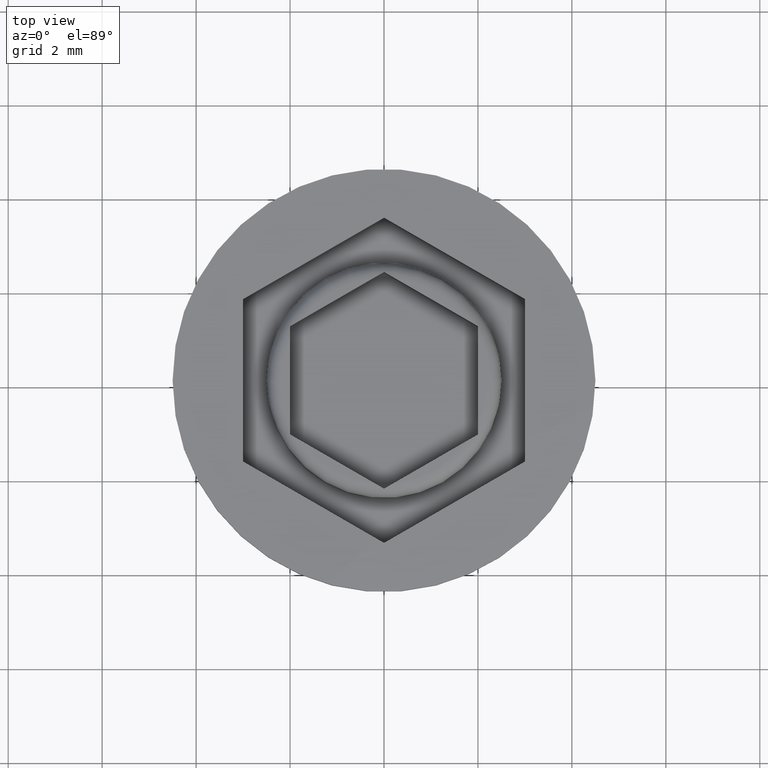
[diagram: clean part render]
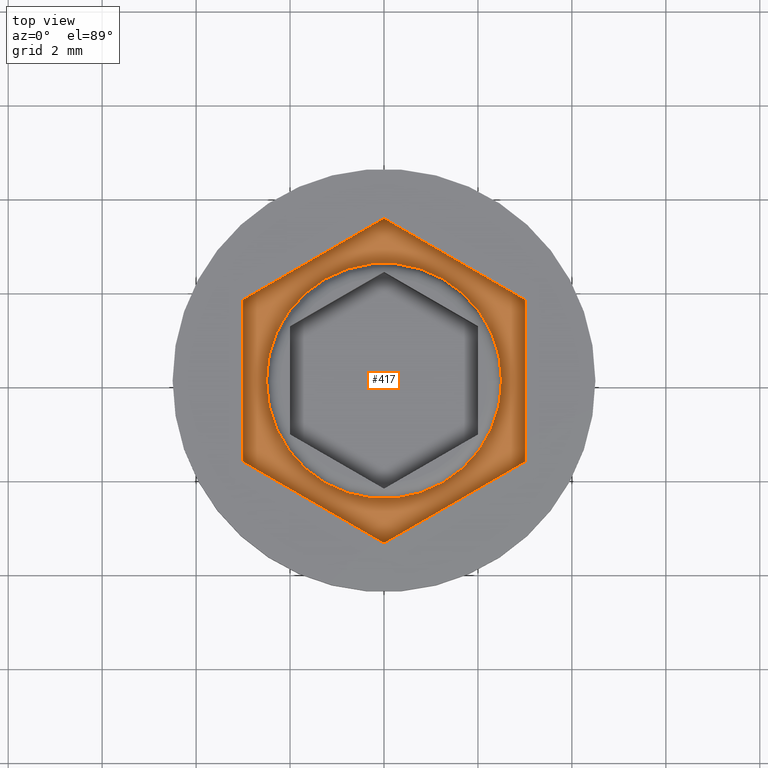
[diagram: same view with one face highlighted and labeled with its STEP entity id]
A machine part, top view. The second image highlights one B-rep face of the part: STEP entity #417.
In plain terms, the highlighted planar face has unit normal (0, 0, 1).
Its self-contained STEP definition (entity closure, byte-faithful):
#5 = VECTOR ( 'NONE', #1061, 1000.000000000000000 ) ;
#27 = LINE ( 'NONE', #807, #362 ) ;
#108 = DIRECTION ( 'NONE',  ( 0.000000000000000000, 0.000000000000000000, 1.000000000000000000 ) ) ;
#117 = VERTEX_POINT ( 'NONE', #242 ) ;
#149 = CARTESIAN_POINT ( 'NONE',  ( 3.000000000000000000, 1.732050807568877859, -1.000000000000000000 ) ) ;
#205 = ORIENTED_EDGE ( 'NONE', *, *, #1353, .T. ) ;
#242 = CARTESIAN_POINT ( 'NONE',  ( -2.500000000000000444, 0.000000000000000000, -1.000000000000000000 ) ) ;
#243 = CARTESIAN_POINT ( 'NONE',  ( 2.500000000000000444, 3.061616997868383634E-16, -1.000000000000000000 ) ) ;
#276 = CARTESIAN_POINT ( 'NONE',  ( -3.394223061414856671E-17, -3.464101615137754386, -1.000000000000000000 ) ) ;
#286 = AXIS2_PLACEMENT_3D ( 'NONE', #1520, #108, #1686 ) ;
#293 = CARTESIAN_POINT ( 'NONE',  ( 0.000000000000000000, 0.000000000000000000, -1.000000000000000000 ) ) ;
#361 = FACE_BOUND ( 'NONE', #1837, .T. ) ;
#362 = VECTOR ( 'NONE', #791, 1000.000000000000000 ) ;
#417 = ADVANCED_FACE ( 'NONE', ( #361, #1313 ), #852, .T. ) ;
#439 = VERTEX_POINT ( 'NONE', #1618 ) ;
#462 = AXIS2_PLACEMENT_3D ( 'NONE', #293, #464, #1089 ) ;
#464 = DIRECTION ( 'NONE',  ( 0.000000000000000000, 0.000000000000000000, 1.000000000000000000 ) ) ;
#519 = EDGE_CURVE ( 'NONE', #1950, #117, #1572, .T. ) ;
#537 = DIRECTION ( 'NONE',  ( 0.000000000000000000, 0.000000000000000000, 1.000000000000000000 ) ) ;
#561 = CARTESIAN_POINT ( 'NONE',  ( -3.000000000000000000, 1.732050807568876083, -1.000000000000000000 ) ) ;
#564 = ORIENTED_EDGE ( 'NONE', *, *, #1948, .T. ) ;
#589 = VECTOR ( 'NONE', #1505, 1000.000000000000114 ) ;
#634 = ORIENTED_EDGE ( 'NONE', *, *, #519, .F. ) ;
#702 = DIRECTION ( 'NONE',  ( 0.000000000000000000, -1.000000000000000000, 0.000000000000000000 ) ) ;
#756 = VECTOR ( 'NONE', #1703, 1000.000000000000000 ) ;
#760 = ORIENTED_EDGE ( 'NONE', *, *, #806, .T. ) ;
#791 = DIRECTION ( 'NONE',  ( 0.000000000000000000, 1.000000000000000000, 0.000000000000000000 ) ) ;
#801 = ORIENTED_EDGE ( 'NONE', *, *, #1637, .T. ) ;
#806 = EDGE_CURVE ( 'NONE', #899, #961, #1041, .T. ) ;
#807 = CARTESIAN_POINT ( 'NONE',  ( 3.000000000000000000, -1.732050807568876971, -1.000000000000000000 ) ) ;
#852 = PLANE ( 'NONE',  #1605 ) ;
#875 = EDGE_CURVE ( 'NONE', #439, #1585, #1517, .T. ) ;
#896 = DIRECTION ( 'NONE',  ( 0.8660254037844385966, 0.4999999999999998890, 0.000000000000000000 ) ) ;
#899 = VERTEX_POINT ( 'NONE', #149 ) ;
#958 = EDGE_LOOP ( 'NONE', ( #760, #1063, #564, #1456, #801, #205 ) ) ;
#961 = VERTEX_POINT ( 'NONE', #1104 ) ;
#987 = DIRECTION ( 'NONE',  ( 1.000000000000000000, 0.000000000000000000, -0.000000000000000000 ) ) ;
#1015 = CARTESIAN_POINT ( 'NONE',  ( 0.000000000000000000, 0.000000000000000000, -1.000000000000000000 ) ) ;
#1041 = LINE ( 'NONE', #1951, #589 ) ;
#1061 = DIRECTION ( 'NONE',  ( -0.8660254037844385966, -0.5000000000000001110, 0.000000000000000000 ) ) ;
#1063 = ORIENTED_EDGE ( 'NONE', *, *, #2001, .T. ) ;
#1088 = VECTOR ( 'NONE', #702, 1000.000000000000000 ) ;
#1089 = DIRECTION ( 'NONE',  ( 1.000000000000000000, 0.000000000000000000, 0.000000000000000000 ) ) ;
#1104 = CARTESIAN_POINT ( 'NONE',  ( 0.000000000000000000, 3.464101615137753942, -1.000000000000000000 ) ) ;
#1135 = CARTESIAN_POINT ( 'NONE',  ( -3.000000000000000000, 1.732050807568876083, -1.000000000000000000 ) ) ;
#1222 = CARTESIAN_POINT ( 'NONE',  ( 0.000000000000000000, 3.464101615137753942, -1.000000000000000000 ) ) ;
#1313 = FACE_OUTER_BOUND ( 'NONE', #958, .T. ) ;
#1353 = EDGE_CURVE ( 'NONE', #1378, #899, #27, .T. ) ;
#1378 = VERTEX_POINT ( 'NONE', #1718 ) ;
#1424 = EDGE_CURVE ( 'NONE', #117, #1950, #1609, .T. ) ;
#1456 = ORIENTED_EDGE ( 'NONE', *, *, #875, .T. ) ;
#1505 = DIRECTION ( 'NONE',  ( -0.8660254037844388186, 0.4999999999999997224, 0.000000000000000000 ) ) ;
#1517 = LINE ( 'NONE', #1993, #756 ) ;
#1520 = CARTESIAN_POINT ( 'NONE',  ( 0.000000000000000000, 0.000000000000000000, -1.000000000000000000 ) ) ;
#1538 = VERTEX_POINT ( 'NONE', #1135 ) ;
#1572 = CIRCLE ( 'NONE', #286, 2.500000000000000444 ) ;
#1585 = VERTEX_POINT ( 'NONE', #276 ) ;
#1605 = AXIS2_PLACEMENT_3D ( 'NONE', #1015, #537, #987 ) ;
#1609 = CIRCLE ( 'NONE', #462, 2.500000000000000444 ) ;
#1618 = CARTESIAN_POINT ( 'NONE',  ( -3.000000000000000000, -1.732050807568877859, -1.000000000000000000 ) ) ;
#1637 = EDGE_CURVE ( 'NONE', #1585, #1378, #1982, .T. ) ;
#1677 = VECTOR ( 'NONE', #896, 1000.000000000000227 ) ;
#1686 = DIRECTION ( 'NONE',  ( 1.000000000000000000, 0.000000000000000000, 0.000000000000000000 ) ) ;
#1691 = CARTESIAN_POINT ( 'NONE',  ( -3.394223061414856671E-17, -3.464101615137754386, -1.000000000000000000 ) ) ;
#1703 = DIRECTION ( 'NONE',  ( 0.8660254037844387076, -0.4999999999999998335, 0.000000000000000000 ) ) ;
#1718 = CARTESIAN_POINT ( 'NONE',  ( 3.000000000000000000, -1.732050807568876971, -1.000000000000000000 ) ) ;
#1837 = EDGE_LOOP ( 'NONE', ( #2027, #634 ) ) ;
#1847 = LINE ( 'NONE', #1222, #5 ) ;
#1948 = EDGE_CURVE ( 'NONE', #1538, #439, #1956, .T. ) ;
#1950 = VERTEX_POINT ( 'NONE', #243 ) ;
#1951 = CARTESIAN_POINT ( 'NONE',  ( 3.000000000000000000, 1.732050807568877859, -1.000000000000000000 ) ) ;
#1956 = LINE ( 'NONE', #561, #1088 ) ;
#1982 = LINE ( 'NONE', #1691, #1677 ) ;
#1993 = CARTESIAN_POINT ( 'NONE',  ( -3.000000000000000000, -1.732050807568877859, -1.000000000000000000 ) ) ;
#2001 = EDGE_CURVE ( 'NONE', #961, #1538, #1847, .T. ) ;
#2027 = ORIENTED_EDGE ( 'NONE', *, *, #1424, .F. ) ;